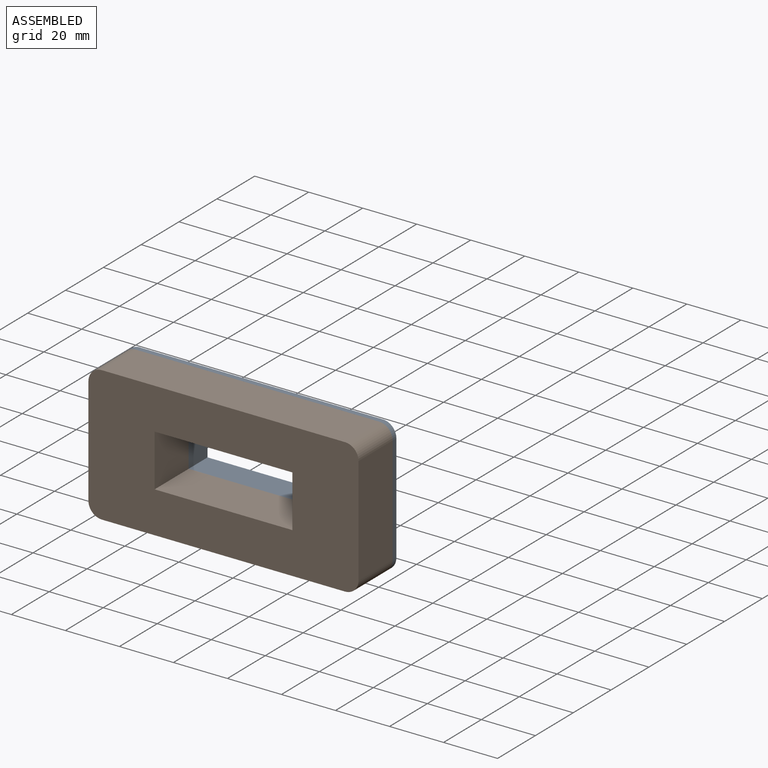
[diagram: assembled view]
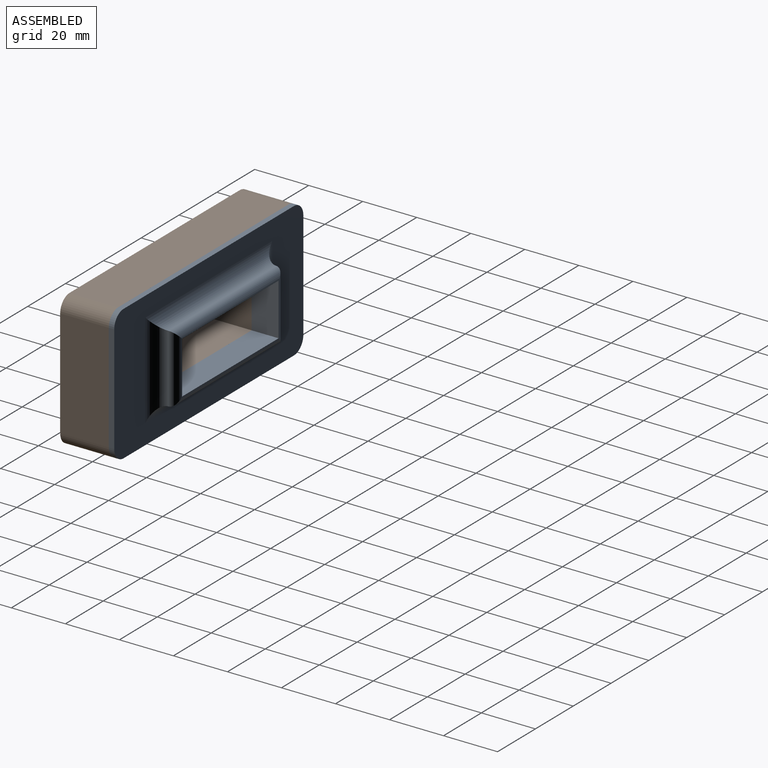
[diagram: assembled view, second angle]
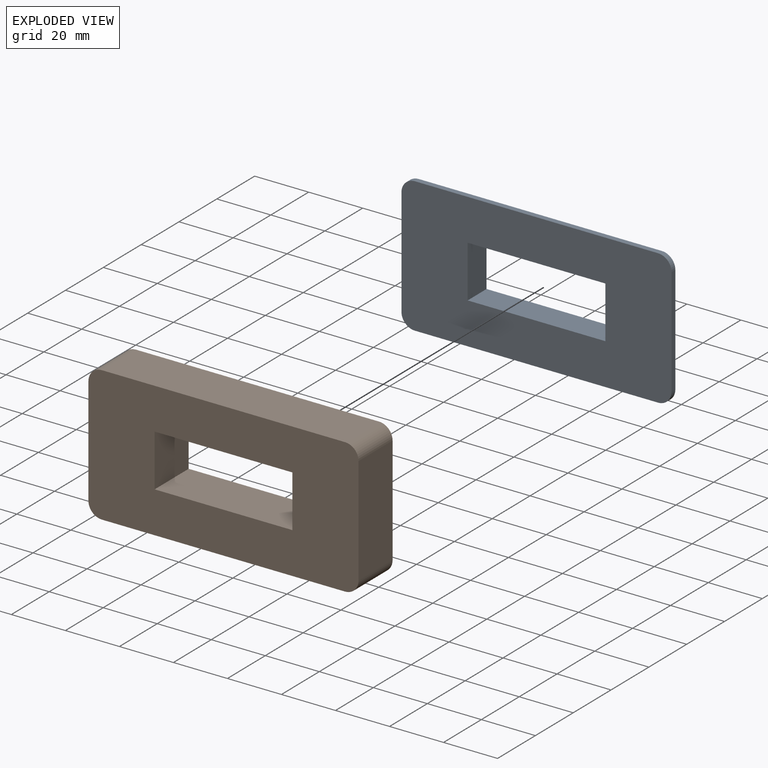
[diagram: exploded view]
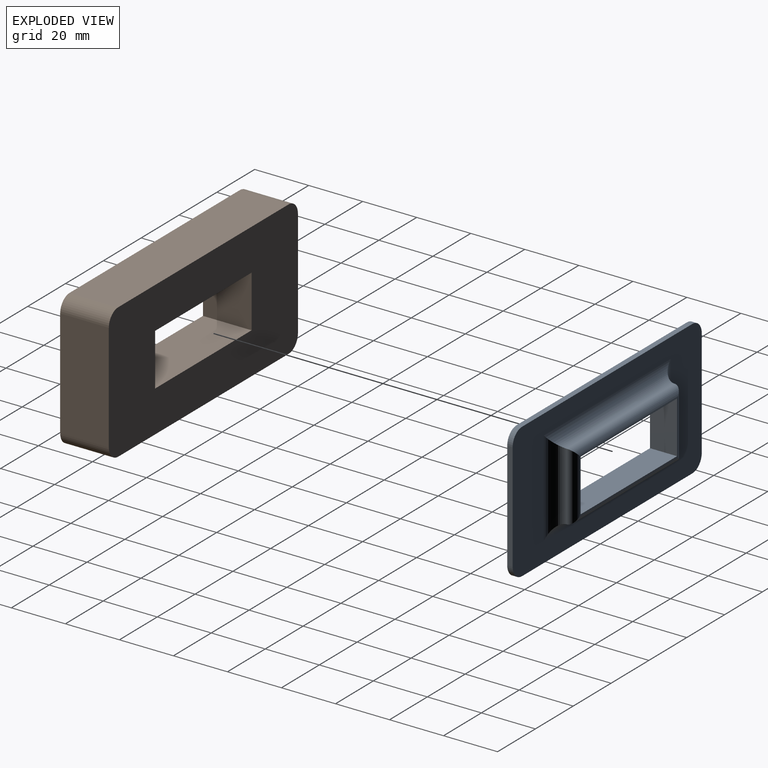
[diagram: exploded view, second angle]
ASSEMBLY  parts=2 mates=2
PART A: 22 faces, bbox 100x10x50 mm
  f0: plane 100x50mm, normal (0,-1,0), area 3994.2mm2, adj f2,f3,f4,f5,f6,f7,f8,f9
  f1: plane 100x50mm, normal (0,1,0), area 2613.4mm2, adj f2,f3,f4,f5,f10,f11,f12,f13
  f2: plane 40x2mm, normal (-1,0,0), area 80mm2, adj f0,f1,f18,f20
  f3: plane 40x2mm, normal (1,0,0), area 80mm2, adj f0,f1,f19,f21
  f4: plane 90x2mm, normal (0,0,1), area 180mm2, adj f0,f1,f20,f21
  f5: plane 90x2mm, normal (0,0,-1), area 180mm2, adj f0,f1,f18,f19
  f6: plane 19.3x10mm, normal (1,0,0), area 193mm2, adj f0,f7,f9,f15
  f7: plane 51x10mm, normal (0,0,1), area 510mm2, adj f0,f6,f8,f14
  f8: plane 19.3x10mm, normal (-1,0,0), area 193mm2, adj f0,f7,f9,f16
  f9: plane 51x10mm, normal (0,0,-1), area 510mm2, adj f0,f6,f8,f17
  f10: cylinder r=5mm len=67mm, axis (-1,0,0), area 476.2mm2, adj f1,f11,f12,f14
  f11: cylinder r=5mm len=35.3mm, axis (0,0,1), area 227.2mm2, adj f1,f10,f13,f15
  f12: cylinder r=5mm len=35.3mm, axis (0,0,-1), area 227.2mm2, adj f1,f10,f13,f16
  f13: cylinder r=5mm len=67mm, axis (1,0,0), area 476.2mm2, adj f1,f11,f12,f17
  f14: cylinder r=3mm len=57mm, axis (1,0,0), area 258.3mm2, adj f7,f10,f15,f16
  f15: cylinder r=3mm len=25.3mm, axis (0,0,-1), area 108.9mm2, adj f6,f11,f14,f17
  f16: cylinder r=3mm len=25.3mm, axis (0,0,1), area 108.9mm2, adj f8,f12,f14,f17
  f17: cylinder r=3mm len=57mm, axis (-1,0,0), area 258.3mm2, adj f9,f13,f15,f16
  f18: cylinder r=5mm len=5mm, axis (0,-1,0), area 15.7mm2, adj f0,f1,f2,f5
  f19: cylinder r=5mm len=5mm, axis (0,1,0), area 15.7mm2, adj f0,f1,f3,f5
  f20: cylinder r=5mm len=5mm, axis (0,1,0), area 15.7mm2, adj f0,f1,f2,f4
  f21: cylinder r=5mm len=5mm, axis (0,-1,0), area 15.7mm2, adj f0,f1,f3,f4
PART B: 14 faces, bbox 100x18x50 mm
  f0: plane 51x18mm, normal (0,0,1), area 918mm2, adj f1,f11,f12,f13
  f1: plane 19.3x18mm, normal (1,0,0), area 347.4mm2, adj f0,f2,f12,f13
  f2: plane 51x18mm, normal (0,0,-1), area 918mm2, adj f1,f11,f12,f13
  f3: plane 40x18mm, normal (-1,0,0), area 720mm2, adj f4,f10,f12,f13
  f4: cylinder r=5mm len=18mm, axis (0,1,0), area 141.4mm2, adj f3,f5,f12,f13
  f5: plane 90x18mm, normal (0,0,-1), area 1620mm2, adj f4,f6,f12,f13
  f6: cylinder r=5mm len=18mm, axis (0,1,0), area 141.4mm2, adj f5,f7,f12,f13
  f7: plane 40x18mm, normal (1,0,0), area 720mm2, adj f6,f8,f12,f13
  f8: cylinder r=5mm len=18mm, axis (0,1,0), area 141.4mm2, adj f7,f9,f12,f13
  f9: plane 90x18mm, normal (0,0,1), area 1620mm2, adj f8,f10,f12,f13
  f10: cylinder r=5mm len=18mm, axis (0,1,0), area 141.4mm2, adj f3,f9,f12,f13
  f11: plane 19.3x18mm, normal (-1,0,0), area 347.4mm2, adj f0,f2,f12,f13
  f12: plane 100x50mm, normal (0,-1,0), area 3994.2mm2, adj f0,f1,f2,f3,f4,f5,f6,f7
  f13: plane 100x50mm, normal (0,1,0), area 3994.2mm2, adj f0,f1,f2,f3,f4,f5,f6,f7
PLACE A t=(-9.41,-32.52,-2.89)mm
PLACE B t=(-9.41,-32.52,-2.89)mm
MATE planar A.f0 <-> B.f13  axis (0,-1,0) through (-9.41,-33.52,22.11)mm
MATE cylindrical A.f20 <-> B.f10  axis (0,1,0) through (-54.41,-31.52,42.11)mm
